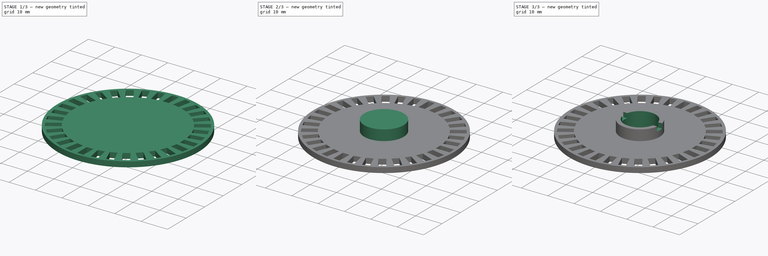
[diagram: build sequence overview — one tinted view per stage of 3, left to right]
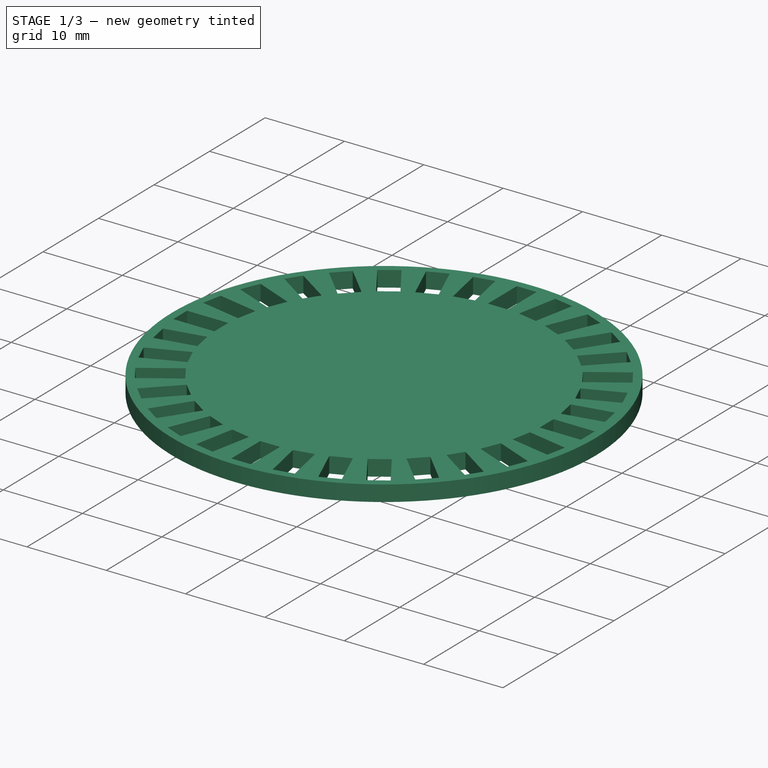
[diagram: stage 1 of 3 — iso view after this stage's code; geometry added in this stage tinted green]
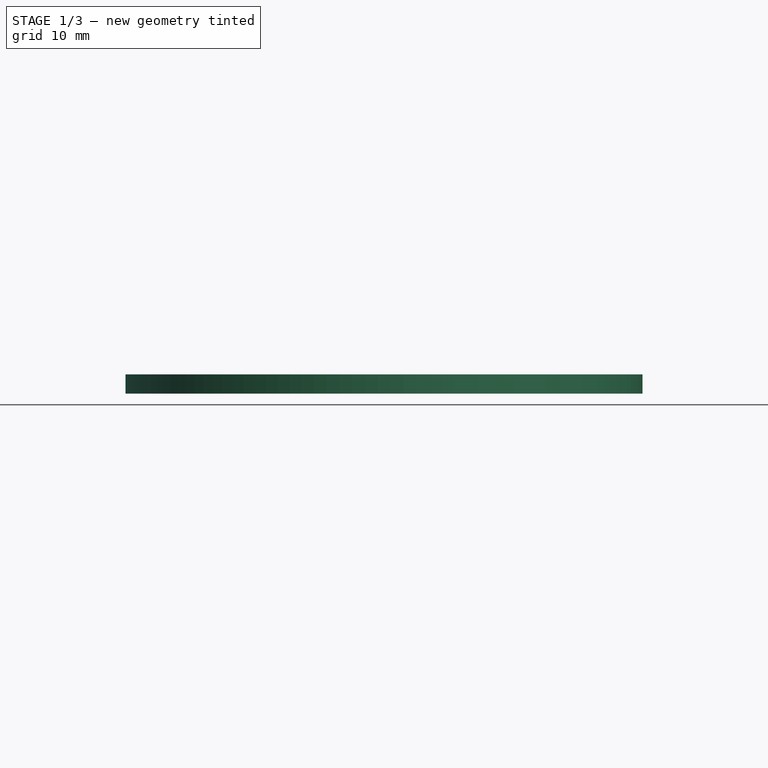
[diagram: stage 1 of 3 — front view after this stage's code; geometry added in this stage tinted green]
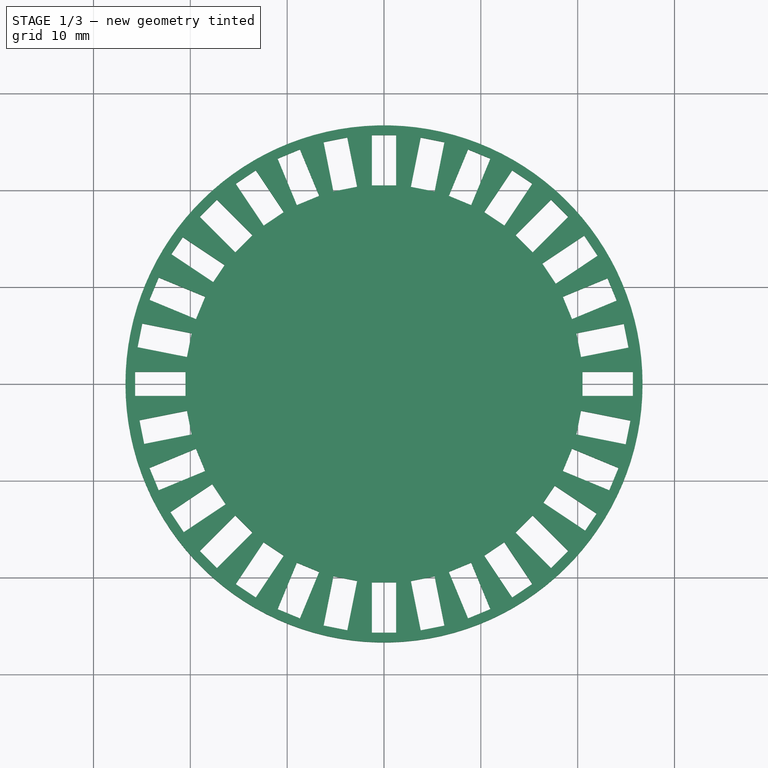
[diagram: stage 1 of 3 — top view after this stage's code; geometry added in this stage tinted green]
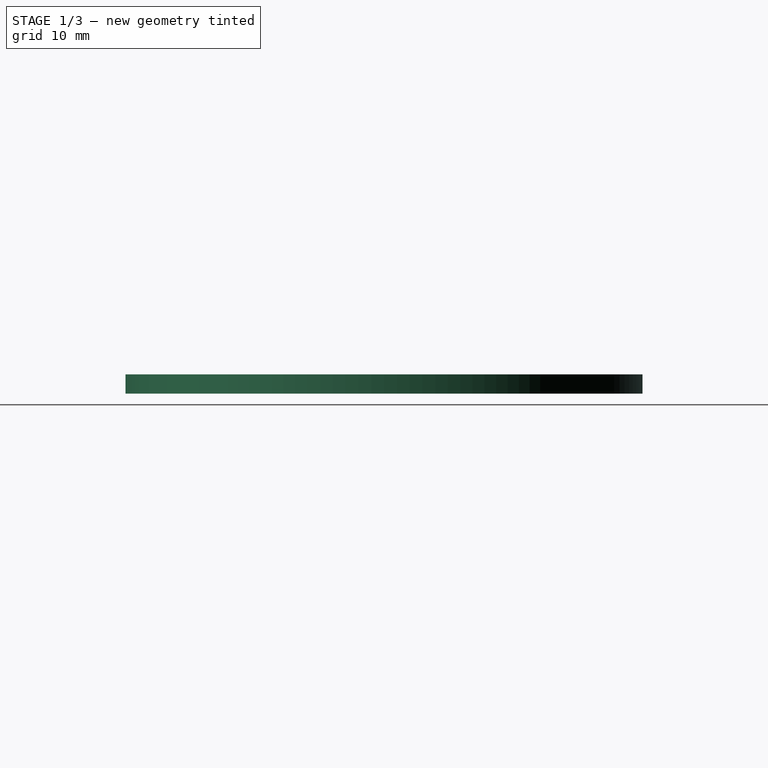
[diagram: stage 1 of 3 — right view after this stage's code; geometry added in this stage tinted green]
FCSTD DOCUMENT  (FreeCAD 0.16R)
Label: 31102020_encoder_disc
License: All rights reserved
LicenseURL: http://en.wikipedia.org/wiki/All_rights_reserved
objects: Sketcher::SketchObject×5, PartDesign::Pocket×3, PartDesign::Pad×2
note: 15 computed .brp shape members not serialized (recipe doc carries the construction recipe); baked Part::Feature solids carry a one-line shape summary decoded from their .brp

FEATURE [Sketcher::SketchObject] Sketch
  sketch-geometry (1):
    g0: Circle CenterX=0 CenterY=0 CenterZ=0 NormalX=0 NormalY=0 NormalZ=1 Radius=26.7
  constraints (2):
    c: Coincident(g0,g-1)
    c: Radius(g0) = 26.7
FEATURE [PartDesign::Pad] Pad
  Length = 2
  Length2 = 100
  Sketch = -> Sketch
  Type = 0
FEATURE [Sketcher::SketchObject] Sketch001
  ExternalGeometry = -> [Pad]
  Placement = pos=(0,0,2) rot=(0,0,1;0rad)
  Support = -> Pad [Face3]
  sketch-geometry (158):
    g0: LineSegment StartX=-25.7 StartY=1.25 StartZ=0 EndX=-20.5 EndY=1.25 EndZ=0
    g1: LineSegment StartX=-20.5 StartY=1.25 StartZ=0 EndX=-20.5 EndY=-1.25 EndZ=0
    g2: LineSegment StartX=-20.5 StartY=-1.25 StartZ=0 EndX=-25.7 EndY=-1.25 EndZ=0
    g3: LineSegment StartX=-25.7 StartY=-1.25 StartZ=0 EndX=-25.7 EndY=1.25 EndZ=0
    g4: LineSegment StartX=20.5 StartY=1.25 StartZ=0 EndX=25.7 EndY=1.25 EndZ=0
    g5: LineSegment StartX=25.7 StartY=1.25 StartZ=0 EndX=25.7 EndY=-1.25 EndZ=0
    g6: LineSegment StartX=25.7 StartY=-1.25 StartZ=0 EndX=20.5 EndY=-1.25 EndZ=0
    g7: LineSegment StartX=20.5 StartY=-1.25 StartZ=0 EndX=20.5 EndY=1.25 EndZ=0
    g8: LineSegment StartX=-1.25 StartY=25.7 StartZ=0 EndX=1.25 EndY=25.7 EndZ=0
    g9: LineSegment StartX=1.25 StartY=25.7 StartZ=0 EndX=1.25 EndY=20.5 EndZ=0
    g10: LineSegment StartX=1.25 StartY=20.5 StartZ=0 EndX=-1.25 EndY=20.5 EndZ=0
    g11: LineSegment StartX=-1.25 StartY=20.5 StartZ=0 EndX=-1.25 EndY=25.7 EndZ=0
    g12: LineSegment StartX=-1.25 StartY=-20.5 StartZ=0 EndX=1.25 EndY=-20.5 EndZ=0
    g13: LineSegment StartX=1.25 StartY=-20.5 StartZ=0 EndX=1.25 EndY=-25.7 EndZ=0
    g14: LineSegment StartX=1.25 StartY=-25.7 StartZ=0 EndX=-1.25 EndY=-25.7 EndZ=0
    g15: LineSegment StartX=-1.25 StartY=-25.7 StartZ=0 EndX=-1.25 EndY=-20.5 EndZ=0
    g16: LineSegment StartX=-19.0296 StartY=17.2618 StartZ=0 EndX=-17.2618 EndY=19.0296 EndZ=0
    g17: LineSegment StartX=-17.2618 StartY=19.0296 StartZ=0 EndX=-13.5848 EndY=15.3526 EndZ=0
    g18: LineSegment StartX=-13.5848 StartY=15.3526 StartZ=0 EndX=-15.3526 EndY=13.5848 EndZ=0
    g19: LineSegment StartX=-15.3526 StartY=13.5848 StartZ=0 EndX=-19.0296 EndY=17.2618 EndZ=0
    g20: LineSegment StartX=17.2618 StartY=19.0296 StartZ=0 EndX=19.0296 EndY=17.2618 EndZ=0
    g21: LineSegment StartX=19.0296 StartY=17.2618 StartZ=0 EndX=15.3526 EndY=13.5848 EndZ=0
    g22: LineSegment StartX=15.3526 StartY=13.5848 StartZ=0 EndX=13.5848 EndY=15.3526 EndZ=0
    g23: LineSegment StartX=13.5848 StartY=15.3526 StartZ=0 EndX=17.2618 EndY=19.0296 EndZ=0
    g24: LineSegment StartX=17.2618 StartY=-19.0296 StartZ=0 EndX=19.0296 EndY=-17.2618 EndZ=0
    g25: LineSegment StartX=19.0296 StartY=-17.2618 StartZ=0 EndX=15.3526 EndY=-13.5848 EndZ=0
    g26: LineSegment StartX=15.3526 StartY=-13.5848 StartZ=0 EndX=13.5848 EndY=-15.3526 EndZ=0
    g27: LineSegment StartX=13.5848 StartY=-15.3526 StartZ=0 EndX=17.2618 EndY=-19.0296 EndZ=0
    g28: LineSegment StartX=-17.2618 StartY=-19.0296 StartZ=0 EndX=-19.0296 EndY=-17.2618 EndZ=0
    g29: LineSegment StartX=-19.0296 StartY=-17.2618 StartZ=0 EndX=-15.3526 EndY=-13.5848 EndZ=0
    g30: LineSegment StartX=-15.3526 StartY=-13.5848 StartZ=0 EndX=-13.5848 EndY=-15.3526 EndZ=0
    g31: LineSegment StartX=-13.5848 StartY=-15.3526 StartZ=0 EndX=-17.2618 EndY=-19.0296 EndZ=0
    g32: LineSegment [constr] StartX=-8.64705 StartY=8.64705 StartZ=0 EndX=-8.42123 EndY=8.42123 EndZ=0
    g33: LineSegment [constr] StartX=-46.2247 StartY=-46.2247 StartZ=0 EndX=-23.4467 EndY=-23.4467 EndZ=0
    g34: LineSegment [constr] StartX=-45.4398 StartY=18.8218 StartZ=0 EndX=42.8093 EndY=-17.7322 EndZ=0
    g35: LineSegment [constr] StartX=-26.2867 StartY=-10.8883 StartZ=0 EndX=60.8199 EndY=25.1924 EndZ=0
    g36: LineSegment [constr] StartX=-11.8852 StartY=28.6933 StartZ=0 EndX=13.143 EndY=-31.7301 EndZ=0
    g37: LineSegment [constr] StartX=-12.2139 StartY=-29.4869 StartZ=0 EndX=8.84197 EndY=21.3464 EndZ=0
    g38: LineSegment StartX=8.68011 StartY=24.2221 StartZ=0 EndX=6.69016 EndY=19.4179 EndZ=0
    g39: LineSegment StartX=6.69016 StartY=19.4179 StartZ=0 EndX=8.99986 EndY=18.4612 EndZ=0
    g40: LineSegment StartX=8.99986 StartY=18.4612 StartZ=0 EndX=10.9898 EndY=23.2653 EndZ=0
    g41: LineSegment StartX=10.9898 StartY=23.2653 StartZ=0 EndX=8.68011 EndY=24.2221 EndZ=0
    g42: LineSegment StartX=18.4612 StartY=8.99986 StartZ=0 EndX=19.4179 EndY=6.69016 EndZ=0
    g43: LineSegment StartX=19.4179 StartY=6.69016 StartZ=0 EndX=24.0373 EndY=8.60358 EndZ=0
    g44: LineSegment StartX=24.0373 StartY=8.60358 StartZ=0 EndX=23.0806 EndY=10.9133 EndZ=0
    g45: LineSegment StartX=23.0806 StartY=10.9133 StartZ=0 EndX=18.4612 EndY=8.99986 EndZ=0
    g46: LineSegment StartX=-23.2653 StartY=10.9898 StartZ=0 EndX=-24.2221 EndY=8.68011 EndZ=0
    g47: LineSegment StartX=-24.2221 StartY=8.68011 StartZ=0 EndX=-19.4179 EndY=6.69016 EndZ=0
    g48: LineSegment StartX=-19.4179 StartY=6.69016 StartZ=0 EndX=-18.4612 EndY=8.99986 EndZ=0
    g49: LineSegment StartX=-18.4612 StartY=8.99986 StartZ=0 EndX=-23.2653 EndY=10.9898 EndZ=0
    g50: LineSegment StartX=-24.2221 StartY=-8.68011 StartZ=0 EndX=-23.2653 EndY=-10.9898 EndZ=0
    g51: LineSegment StartX=-23.2653 StartY=-10.9898 StartZ=0 EndX=-18.4612 EndY=-8.99986 EndZ=0
    g52: LineSegment StartX=-18.4612 StartY=-8.99986 StartZ=0 EndX=-19.4179 EndY=-6.69016 EndZ=0
    g53: LineSegment StartX=-19.4179 StartY=-6.69016 StartZ=0 EndX=-24.2221 EndY=-8.68011 EndZ=0
    g54: LineSegment StartX=-10.9898 StartY=-23.2653 StartZ=0 EndX=-8.68011 EndY=-24.2221 EndZ=0
    g55: LineSegment StartX=-8.68011 StartY=-24.2221 StartZ=0 EndX=-6.69016 EndY=-19.4179 EndZ=0
    g56: LineSegment StartX=-6.69016 StartY=-19.4179 StartZ=0 EndX=-8.99986 EndY=-18.4612 EndZ=0
    g57: LineSegment StartX=-8.99986 StartY=-18.4612 StartZ=0 EndX=-10.9898 EndY=-23.2653 EndZ=0
    g58: LineSegment StartX=6.69016 StartY=-19.4179 StartZ=0 EndX=8.68011 EndY=-24.2221 EndZ=0
    g59: LineSegment StartX=8.68011 StartY=-24.2221 StartZ=0 EndX=10.9898 EndY=-23.2653 EndZ=0
    g60: LineSegment StartX=10.9898 StartY=-23.2653 StartZ=0 EndX=8.99986 EndY=-18.4612 EndZ=0
    g61: LineSegment StartX=8.99986 StartY=-18.4612 StartZ=0 EndX=6.69016 EndY=-19.4179 EndZ=0
    g62: LineSegment StartX=19.4179 StartY=-6.69016 StartZ=0 EndX=18.4612 EndY=-8.99986 EndZ=0
    g63: LineSegment StartX=18.4612 StartY=-8.99986 StartZ=0 EndX=23.2653 EndY=-10.9898 EndZ=0
    g64: LineSegment StartX=23.2653 StartY=-10.9898 StartZ=0 EndX=24.2221 EndY=-8.68011 EndZ=0
    g65: LineSegment StartX=24.2221 StartY=-8.68011 StartZ=0 EndX=19.4179 EndY=-6.69016 EndZ=0
    g66: GeomPoint [constr] X=-7.84501 Y=-18.9395 Z=0
    g67: GeomPoint [constr] X=-18.9395 Y=-7.84501 Z=0
    g68: GeomPoint [constr] X=-18.9395 Y=7.84501 Z=0
    g69: GeomPoint [constr] X=18.9395 Y=-7.84501 Z=0
    g70: GeomPoint [constr] X=18.9395 Y=7.84501 Z=0
    g71: GeomPoint [constr] X=7.84501 Y=18.9395 Z=0
    g72: GeomPoint [constr] X=-7.84501 Y=18.9395 Z=0
    g73: LineSegment StartX=-10.9898 StartY=23.2653 StartZ=0 EndX=-8.68011 EndY=24.2221 EndZ=0
    g74: LineSegment StartX=-8.68011 StartY=24.2221 StartZ=0 EndX=-6.69016 EndY=19.4179 EndZ=0
    g75: LineSegment StartX=-6.69016 StartY=19.4179 StartZ=0 EndX=-8.99986 EndY=18.4612 EndZ=0
    g76: LineSegment StartX=-8.99986 StartY=18.4612 StartZ=0 EndX=-10.9898 EndY=23.2653 EndZ=0
    g77: GeomPoint [constr] X=7.84501 Y=-18.9395 Z=0
    g78: LineSegment [constr] StartX=-38.8403 StartY=-25.9523 StartZ=0 EndX=34.297 EndY=22.9166 EndZ=0
    g79: LineSegment [constr] StartX=-41.2037 StartY=-8.19592 StartZ=0 EndX=50.542 EndY=10.0534 EndZ=0
    g80: LineSegment [constr] StartX=-16.076 StartY=-24.0594 StartZ=0 EndX=16.2776 EndY=24.3612 EndZ=0
    g81: LineSegment [constr] StartX=-10.318 StartY=-51.8721 StartZ=0 EndX=11.9268 EndY=59.9603 EndZ=0
    g82: LineSegment [constr] StartX=-49.656 StartY=9.87719 StartZ=0 EndX=45.5538 EndY=-9.06121 EndZ=0
    g83: LineSegment [constr] StartX=-38.1317 StartY=25.4788 StartZ=0 EndX=38.2061 EndY=-25.5285 EndZ=0
    g84: LineSegment [constr] StartX=-18.7384 StartY=28.0439 StartZ=0 EndX=22.1765 EndY=-33.1894 EndZ=0
    g85: LineSegment [constr] StartX=-5.72925 StartY=28.8029 StartZ=0 EndX=6.53436 EndY=-32.8504 EndZ=0
    g86: LineSegment StartX=19.8622 StartY=5.22533 StartZ=0 EndX=20.35 EndY=2.77337 EndZ=0
    g87: LineSegment StartX=20.35 StartY=2.77337 StartZ=0 EndX=25.2539 EndY=3.74882 EndZ=0
    g88: LineSegment StartX=25.2539 StartY=3.74882 StartZ=0 EndX=24.7662 EndY=6.20078 EndZ=0
    g89: LineSegment StartX=24.7662 StartY=6.20078 StartZ=0 EndX=19.8622 EndY=5.22533 EndZ=0
    g90: GeomPoint [constr] X=20.1061 Y=3.99935 Z=0
    g91: LineSegment StartX=-25.2539 StartY=-3.74882 StartZ=0 EndX=-24.7662 EndY=-6.20078 EndZ=0
    g92: LineSegment StartX=-24.7662 StartY=-6.20078 StartZ=0 EndX=-19.8622 EndY=-5.22533 EndZ=0
    g93: LineSegment StartX=-19.8622 StartY=-5.22533 StartZ=0 EndX=-20.35 EndY=-2.77337 EndZ=0
    g94: LineSegment StartX=-20.35 StartY=-2.77337 StartZ=0 EndX=-25.2539 EndY=-3.74882 EndZ=0
    g95: LineSegment StartX=-24.9623 StartY=6.2398 StartZ=0 EndX=-25.45 EndY=3.78784 EndZ=0
    g96: LineSegment StartX=-25.45 StartY=3.78784 StartZ=0 EndX=-20.35 EndY=2.77337 EndZ=0
    g97: LineSegment StartX=-20.35 StartY=2.77337 StartZ=0 EndX=-19.8622 EndY=5.22533 EndZ=0
    g98: LineSegment StartX=-19.8622 StartY=5.22533 StartZ=0 EndX=-24.9623 EndY=6.2398 EndZ=0
    g99: LineSegment StartX=-20.7785 StartY=15.1615 StartZ=0 EndX=-21.959 EndY=13.3948 EndZ=0
    g100: LineSegment StartX=-21.959 StartY=13.3948 StartZ=0 EndX=-17.6354 EndY=10.5058 EndZ=0
    g101: LineSegment StartX=-17.6354 StartY=10.5058 StartZ=0 EndX=-16.4549 EndY=12.2726 EndZ=0
    g102: LineSegment StartX=-16.4549 StartY=12.2726 StartZ=0 EndX=-20.7785 EndY=15.1615 EndZ=0
    g103: LineSegment StartX=-15.3175 StartY=20.6743 StartZ=0 EndX=-13.2388 EndY=22.0632 EndZ=0
    g104: LineSegment StartX=-13.2388 StartY=22.0632 StartZ=0 EndX=-10.3499 EndY=17.7396 EndZ=0
    g105: LineSegment StartX=-10.3499 StartY=17.7396 StartZ=0 EndX=-12.4285 EndY=16.3507 EndZ=0
    g106: LineSegment StartX=-12.4285 StartY=16.3507 StartZ=0 EndX=-15.3175 EndY=20.6743 EndZ=0
    g107: LineSegment StartX=-6.24165 StartY=24.9716 StartZ=0 EndX=-3.78969 EndY=25.4593 EndZ=0
    g108: LineSegment StartX=-3.78969 StartY=25.4593 StartZ=0 EndX=-2.77522 EndY=20.3593 EndZ=0
    g109: LineSegment StartX=-2.77522 StartY=20.3593 StartZ=0 EndX=-5.22718 EndY=19.8715 EndZ=0
    g110: LineSegment StartX=-5.22718 StartY=19.8715 StartZ=0 EndX=-6.24165 EndY=24.9716 EndZ=0
    g111: LineSegment StartX=3.78784 StartY=25.45 StartZ=0 EndX=2.77337 EndY=20.35 EndZ=0
    g112: LineSegment StartX=2.77337 StartY=20.35 StartZ=0 EndX=5.22533 EndY=19.8622 EndZ=0
    g113: LineSegment StartX=5.22533 StartY=19.8622 StartZ=0 EndX=6.2398 EndY=24.9623 EndZ=0
    g114: LineSegment StartX=6.2398 StartY=24.9623 StartZ=0 EndX=3.78784 EndY=25.45 EndZ=0
    g115: LineSegment StartX=13.2388 StartY=22.0632 StartZ=0 EndX=10.3499 EndY=17.7396 EndZ=0
    g116: LineSegment StartX=10.3499 StartY=17.7396 StartZ=0 EndX=12.4285 EndY=16.3507 EndZ=0
    g117: LineSegment StartX=12.4285 StartY=16.3507 StartZ=0 EndX=15.3175 EndY=20.6743 EndZ=0
    g118: LineSegment StartX=15.3175 StartY=20.6743 StartZ=0 EndX=13.2388 EndY=22.0632 EndZ=0
    g119: LineSegment StartX=16.3507 StartY=12.4285 StartZ=0 EndX=17.7396 EndY=10.3499 EndZ=0
    g120: LineSegment StartX=17.7396 StartY=10.3499 StartZ=0 EndX=22.0632 EndY=13.2388 EndZ=0
    g121: LineSegment StartX=22.0632 StartY=13.2388 StartZ=0 EndX=20.6743 EndY=15.3175 EndZ=0
    g122: LineSegment StartX=20.6743 StartY=15.3175 StartZ=0 EndX=16.3507 EndY=12.4285 EndZ=0
    g123: LineSegment StartX=20.35 StartY=-2.77337 StartZ=0 EndX=19.8622 EndY=-5.22533 EndZ=0
    g124: LineSegment StartX=19.8622 StartY=-5.22533 StartZ=0 EndX=24.9623 EndY=-6.2398 EndZ=0
    g125: LineSegment StartX=24.9623 StartY=-6.2398 StartZ=0 EndX=25.45 EndY=-3.78784 EndZ=0
    g126: LineSegment StartX=25.45 StartY=-3.78784 StartZ=0 EndX=20.35 EndY=-2.77337 EndZ=0
    g127: LineSegment StartX=17.6354 StartY=-10.5058 StartZ=0 EndX=16.4549 EndY=-12.2726 EndZ=0
    g128: LineSegment StartX=16.4549 StartY=-12.2726 StartZ=0 EndX=20.7785 EndY=-15.1615 EndZ=0
    g129: LineSegment StartX=20.7785 StartY=-15.1615 StartZ=0 EndX=21.959 EndY=-13.3948 EndZ=0
    g130: LineSegment StartX=21.959 StartY=-13.3948 StartZ=0 EndX=17.6354 EndY=-10.5058 EndZ=0
    g131: LineSegment StartX=10.3499 StartY=-17.7396 StartZ=0 EndX=12.4285 EndY=-16.3507 EndZ=0
    g132: LineSegment StartX=12.4285 StartY=-16.3507 StartZ=0 EndX=15.3175 EndY=-20.6743 EndZ=0
    g133: LineSegment StartX=15.3175 StartY=-20.6743 StartZ=0 EndX=13.2388 EndY=-22.0632 EndZ=0
    g134: LineSegment StartX=13.2388 StartY=-22.0632 StartZ=0 EndX=10.3499 EndY=-17.7396 EndZ=0
    g135: LineSegment StartX=2.77522 StartY=-20.3593 StartZ=0 EndX=5.22718 EndY=-19.8715 EndZ=0
    g136: LineSegment StartX=5.22718 StartY=-19.8715 StartZ=0 EndX=6.24165 EndY=-24.9716 EndZ=0
    g137: LineSegment StartX=6.24165 StartY=-24.9716 StartZ=0 EndX=3.78969 EndY=-25.4593 EndZ=0
    g138: LineSegment StartX=3.78969 StartY=-25.4593 StartZ=0 EndX=2.77522 EndY=-20.3593 EndZ=0
    g139: LineSegment StartX=-2.77337 StartY=-20.35 StartZ=0 EndX=-3.78784 EndY=-25.45 EndZ=0
    g140: LineSegment StartX=-3.78784 StartY=-25.45 StartZ=0 EndX=-6.2398 EndY=-24.9623 EndZ=0
    g141: LineSegment StartX=-6.2398 StartY=-24.9623 StartZ=0 EndX=-5.22533 EndY=-19.8622 EndZ=0
    g142: LineSegment StartX=-5.22533 StartY=-19.8622 StartZ=0 EndX=-2.77337 EndY=-20.35 EndZ=0
    g143: LineSegment StartX=-15.3175 StartY=-20.6743 StartZ=0 EndX=-13.2388 EndY=-22.0632 EndZ=0
    g144: LineSegment StartX=-13.2388 StartY=-22.0632 StartZ=0 EndX=-10.3499 EndY=-17.7396 EndZ=0
    g145: LineSegment StartX=-10.3499 StartY=-17.7396 StartZ=0 EndX=-12.4285 EndY=-16.3507 EndZ=0
    g146: LineSegment StartX=-12.4285 StartY=-16.3507 StartZ=0 EndX=-15.3175 EndY=-20.6743 EndZ=0
    g147: LineSegment StartX=-22.0632 StartY=-13.2388 StartZ=0 EndX=-20.6743 EndY=-15.3175 EndZ=0
    g148: LineSegment StartX=-20.6743 StartY=-15.3175 StartZ=0 EndX=-16.3507 EndY=-12.4285 EndZ=0
    g149: LineSegment StartX=-16.3507 StartY=-12.4285 StartZ=0 EndX=-17.7396 EndY=-10.3499 EndZ=0
    g150: LineSegment StartX=-17.7396 StartY=-10.3499 StartZ=0 EndX=-22.0632 EndY=-13.2388 EndZ=0
    g151: GeomPoint [constr] X=17.0451 Y=11.3892 Z=0
    g152: GeomPoint [constr] X=5.36597 Y=12.9546 Z=0
    g153: GeomPoint [constr] X=20.1061 Y=-3.99935 Z=0
    g154: GeomPoint [constr] X=-17.0451 Y=11.3892 Z=0
    g155: GeomPoint [constr] X=11.3892 Y=-17.0451 Z=0
    g156: GeomPoint [constr] X=-3.99935 Y=-20.1061 Z=0
    g157: GeomPoint [constr] X=-11.3892 Y=-17.0451 Z=0
  constraints (392):
    c: Coincident(g0,g1)
    c: Coincident(g1,g2)
    c: Coincident(g2,g3)
    c: Coincident(g3,g0)
    c: Horizontal(g0)
    c: Horizontal(g2)
    c: Vertical(g1)
    c: Vertical(g3)
    c: Coincident(g4,g5)
    c: Coincident(g5,g6)
    c: Coincident(g6,g7)
    c: Coincident(g7,g4)
    c: Horizontal(g4)
    c: Horizontal(g6)
    c: Vertical(g5)
    c: Vertical(g7)
    c: Coincident(g8,g9)
    c: Coincident(g9,g10)
    c: Coincident(g10,g11)
    c: Coincident(g11,g8)
    c: Horizontal(g8)
    c: Horizontal(g10)
    c: Vertical(g11)
    c: Coincident(g12,g13)
    c: Coincident(g13,g14)
    c: Coincident(g14,g15)
    c: Coincident(g15,g12)
    c: Horizontal(g12)
    c: Horizontal(g14)
    c: Vertical(g13)
    c: Vertical(g15)
    c: Symmetric(g10,g12,g-1)
    c: Symmetric(g9,g12,g-1)
    c: Symmetric(g13,g8,g-1)
    c: Symmetric(g4,g0,g-2)
    c: Symmetric(g2,g5,g-2)
    c: Distance(g0) = 5.2
    c: DistanceX(g0,g-1) = 20.5
    c: DistanceY(g-1,g10) = 20.5
    c: DistanceY(g10,g8) = 5.2
    c: Symmetric(g0,g2,g-1)
    c: Symmetric(g8,g8,g-2)
    c: Coincident(g16,g17)
    c: Coincident(g17,g18)
    c: Coincident(g18,g19)
    c: Coincident(g19,g16)
    c: Coincident(g20,g21)
    c: Coincident(g21,g22)
    c: Coincident(g22,g23)
    c: Coincident(g23,g20)
    c: Coincident(g24,g25)
    c: Coincident(g25,g26)
    c: Coincident(g26,g27)
    c: Coincident(g27,g24)
    c: Coincident(g28,g29)
    c: Coincident(g29,g30)
    c: Coincident(g30,g31)
    c: Coincident(g31,g28)
    c: Parallel(g28,g30)
    c: Parallel(g16,g18)
    c: Parallel(g19,g17)
    c: Parallel(g31,g29)
    c: Parallel(g27,g25)
    c: Parallel(g24,g26)
    c: Parallel(g21,g23)
    c: Distance(g17) = 5.2
    c: Distance(g21) = 5.2
    c: Angle(g32,g-1) = 0.785398
    c: PointOnObject(g-1,g32)
    c: PointOnObject(g-1,g33)
    c: Symmetric(g20,g20,g33)
    c: Symmetric(g22,g21,g33)
    c: Symmetric(g16,g16,g32)
    c: Symmetric(g17,g18,g32)
    c: Symmetric(g29,g30,g33)
    c: Symmetric(g28,g28,g33)
    c: Symmetric(g25,g26,g32)
    c: Symmetric(g24,g24,g32)
    c: Distance(g-1,g30) = 20.5
    c: Distance(g-1,g17) = 20.5
    c: Symmetric(g22,g29,g32)
    c: Symmetric(g30,g21,g32)
    c: Symmetric(g17,g25,g33)
    c: Symmetric(g24,g16,g33)
    c: Symmetric(g28,g20,g32)
    c: PointOnObject(g-1,g34)
    c: Angle(g34,g-1) = 0.392699
    c: PointOnObject(g-1,g35)
    c: Angle(g-1,g35) = 0.392699
    c: PointOnObject(g-1,g36)
    c: Angle(g-2,g36) = 0.392699
    c: PointOnObject(g-1,g37)
    c: Angle(g37,g-2) = 0.392699
    c: Coincident(g38,g39)
    c: Coincident(g39,g40)
    c: Coincident(g40,g41)
    c: Coincident(g41,g38)
    c: Coincident(g42,g43)
    c: Coincident(g43,g44)
    c: Coincident(g44,g45)
    c: Coincident(g45,g42)
    c: Coincident(g46,g47)
    c: Coincident(g47,g48)
    c: Coincident(g48,g49)
    c: Coincident(g49,g46)
    c: Coincident(g50,g51)
    c: Coincident(g51,g52)
    c: Coincident(g52,g53)
    c: Coincident(g53,g50)
    c: Coincident(g54,g55)
    c: Coincident(g55,g56)
    c: Coincident(g56,g57)
    c: Coincident(g57,g54)
    c: Coincident(g58,g59)
    c: Coincident(g59,g60)
    c: Coincident(g60,g61)
    c: Coincident(g61,g58)
    c: Coincident(g62,g63)
    c: Coincident(g63,g64)
    c: Coincident(g64,g65)
    c: Coincident(g65,g62)
    c: PointOnObject(g66,g37)
    c: PointOnObject(g67,g35)
    c: PointOnObject(g68,g34)
    c: PointOnObject(g69,g34)
    c: PointOnObject(g70,g35)
    c: PointOnObject(g71,g37)
    c: PointOnObject(g72,g36)
    c: Coincident(g73,g74)
    c: Coincident(g74,g75)
    c: Coincident(g75,g76)
    c: Coincident(g76,g73)
    c: PointOnObject(g72,g75)
    c: PointOnObject(g71,g39)
    c: PointOnObject(g70,g42)
    c: PointOnObject(g69,g62)
    c: PointOnObject(g77,g36)
    c: PointOnObject(g77,g61)
    c: PointOnObject(g66,g56)
    c: PointOnObject(g67,g52)
    c: PointOnObject(g68,g48)
    c: Distance(g-1,g69) = 20.5
    c: Distance(g-1,g77) = 20.5
    c: Distance(g-1,g66) = 20.5
    c: Distance(g-1,g67) = 20.5
    c: Symmetric(g62,g48,g37)
    c: Symmetric(g62,g47,g37)
    c: Symmetric(g60,g74,g35)
    c: Symmetric(g75,g58,g35)
    c: Symmetric(g55,g39,g34)
    c: Symmetric(g38,g56,g34)
    c: Symmetric(g51,g42,g36)
    c: Symmetric(g42,g52,g36)
    c: Parallel(g56,g54)
    c: Parallel(g50,g52)
    c: Parallel(g46,g48)
    c: Parallel(g73,g75)
    c: Parallel(g41,g39)
    c: Parallel(g44,g42)
    c: Parallel(g64,g62)
    c: Parallel(g59,g61)
    c: Symmetric(g50,g50,g35)
    c: Symmetric(g51,g52,g35)
    c: Distance(g51) = 5.2
    c: Symmetric(g46,g46,g34)
    c: Symmetric(g47,g48,g34)
    c: Distance(g49) = 5.2
    c: Equal(g75,g73)
    c: Symmetric(g73,g73,g36)
    c: Symmetric(g75,g74,g36)
    c: Distance(g74) = 5.2
    c: Symmetric(g38,g40,g37)
    c: Symmetric(g38,g39,g37)
    c: Distance(g38) = 5.2
    c: Equal(g41,g39)
    c: Symmetric(g42,g42,g35)
    c: Symmetric(g44,g43,g35)
    c: Distance(g43) = 5
    c: Equal(g44,g42)
    c: Symmetric(g64,g63,g34)
    c: Equal(g64,g62)
    c: Distance(g65) = 5.2
    c: Symmetric(g59,g58,g36)
    c: Equal(g59,g61)
    c: Distance(g60) = 5.2
    c: Symmetric(g54,g54,g37)
    c: Equal(g54,g56)
    c: Distance(g55) = 5.2
    c: Equal(g1,g18)
    c: Equal(g18,g52)
    c: Equal(g52,g48)
    c: Equal(g48,g75)
    c: Equal(g75,g10)
    c: Equal(g10,g39)
    c: Equal(g39,g22)
    c: Equal(g22,g42)
    c: Equal(g42,g7)
    c: Equal(g7,g62)
    c: Equal(g62,g26)
    c: Equal(g26,g61)
    c: Equal(g61,g12)
    c: Equal(g12,g56)
    c: Equal(g56,g30)
    c: PointOnObject(g-1,g78)
    c: Angle(g78) = 0.589049
    c: PointOnObject(g-1,g79)
    c: Angle(g79) = 0.19635
    c: PointOnObject(g-1,g80)
    c: Angle(g80) = 0.981748
    c: PointOnObject(g-1,g81)
    c: Angle(g81) = 1.37445
    c: PointOnObject(g-1,g82)
    c: Angle(g82) = -0.19635
    c: PointOnObject(g-1,g83)
    c: Angle(g83) = -0.589049
    c: PointOnObject(g-1,g84)
    c: Angle(g84) = -0.981748
    c: PointOnObject(g-1,g85)
    c: Angle(g85) = -1.37445
    c: Coincident(g86,g87)
    c: Coincident(g87,g88)
    c: Coincident(g88,g89)
    c: Coincident(g89,g86)
    c: DistanceY(g5,g5) = 2.5
    c: Equal(g88,g5)
    c: Equal(g43,g89)
    c: Equal(g87,g89)
    c: Symmetric(g88,g87,g79)
    c: Symmetric(g86,g86,g79)
    c: Equal(g86,g88)
    c: PointOnObject(g90,g79)
    c: PointOnObject(g90,g86)
    c: Distance(g-1,g90) = 20.5
    c: Coincident(g91,g92)
    c: Coincident(g92,g93)
    c: Coincident(g93,g94)
    c: Coincident(g94,g91)
    c: Coincident(g95,g96)
    c: Coincident(g96,g97)
    c: Coincident(g97,g98)
    c: Coincident(g98,g95)
    c: Coincident(g99,g100)
    c: Coincident(g100,g101)
    c: Coincident(g101,g102)
    c: Coincident(g102,g99)
    c: Coincident(g103,g104)
    c: Coincident(g104,g105)
    c: Coincident(g105,g106)
    c: Coincident(g106,g103)
    c: Coincident(g107,g108)
    c: Coincident(g108,g109)
    c: Coincident(g109,g110)
    c: Coincident(g110,g107)
    c: Coincident(g111,g112)
    c: Coincident(g112,g113)
    c: Coincident(g113,g114)
    c: Coincident(g114,g111)
    c: Coincident(g115,g116)
    c: Coincident(g116,g117)
    c: Coincident(g117,g118)
    c: Coincident(g118,g115)
    c: Coincident(g119,g120)
    c: Coincident(g120,g121)
    c: Coincident(g121,g122)
    c: Coincident(g122,g119)
    c: Coincident(g123,g124)
    c: Coincident(g124,g125)
    c: Coincident(g125,g126)
    c: Coincident(g126,g123)
    c: Coincident(g127,g128)
    c: Coincident(g128,g129)
    c: Coincident(g129,g130)
    c: Coincident(g130,g127)
    c: Coincident(g131,g132)
    c: Coincident(g132,g133)
    c: Coincident(g133,g134)
    c: Coincident(g134,g131)
    c: Coincident(g135,g136)
    c: Coincident(g136,g137)
    c: Coincident(g137,g138)
    c: Coincident(g138,g135)
    c: Coincident(g139,g140)
    c: Coincident(g140,g141)
    c: Coincident(g141,g142)
    c: Coincident(g142,g139)
    c: Coincident(g143,g144)
    c: Coincident(g144,g145)
    c: Coincident(g145,g146)
    c: Coincident(g146,g143)
    c: Coincident(g147,g148)
    c: Coincident(g148,g149)
    c: Coincident(g149,g150)
    c: Coincident(g150,g147)
    c: Symmetric(g86,g93,g85)
    c: Symmetric(g92,g86,g85)
    c: Symmetric(g91,g88,g85)
    c: Symmetric(g91,g87,g85)
    c: Equal(g122,g120)
    c: Equal(g121,g119)
    c: PointOnObject(g151,g78)
    c: PointOnObject(g152,g37)
    c: PointOnObject(g151,g119)
    c: Symmetric(g119,g119,g78)
    c: Symmetric(g121,g120,g78)
    c: Distance(g-1,g151) = 20.5
    c: Equal(g122,g21)
    c: Equal(g42,g119)
    c: Symmetric(g119,g149,g84)
    c: Symmetric(g119,g148,g84)
    c: Symmetric(g121,g147,g84)
    c: Symmetric(g147,g120,g84)
    c: Equal(g50,g52)
    c: Equal(g126,g6)
    c: Equal(g124,g126)
    c: Equal(g123,g125)
    c: Equal(g123,g7)
    c: Symmetric(g123,g123,g82)
    c: Symmetric(g124,g125,g82)
    c: PointOnObject(g153,g82)
    c: PointOnObject(g153,g123)
    c: Distance(g-1,g153) = 20.5
    c: Symmetric(g125,g95,g81)
    c: Symmetric(g124,g95,g81)
    c: Symmetric(g96,g123,g81)
    c: Symmetric(g97,g123,g81)
    c: Equal(g100,g102)
    c: Equal(g101,g99)
    c: Symmetric(g99,g99,g83)
    c: Symmetric(g100,g101,g83)
    c: PointOnObject(g154,g83)
    c: PointOnObject(g154,g101)
    c: Distance(g-1,g154) = 20.5
    c: Symmetric(g100,g127,g80)
    c: Symmetric(g127,g101,g80)
    c: Symmetric(g99,g129,g80)
    c: Symmetric(g99,g128,g80)
    c: Equal(g100,g49)
    c: Equal(g46,g48)
    c: Symmetric(g131,g104,g78)
    c: Symmetric(g131,g105,g78)
    c: Symmetric(g103,g133,g78)
    c: Symmetric(g132,g103,g78)
    c: PointOnObject(g155,g84)
    c: PointOnObject(g155,g131)
    c: Distance(g-1,g155) = 20.5
    c: Equal(g132,g134)
    c: Symmetric(g131,g131,g84)
    c: Symmetric(g133,g132,g84)
    c: Equal(g133,g131)
    c: Equal(g132,g27)
    c: Equal(g133,g24)
    c: Symmetric(g135,g109,g79)
    c: Symmetric(g108,g135,g79)
    c: Symmetric(g137,g107,g79)
    c: Symmetric(g107,g136,g79)
    c: Symmetric(g137,g136,g85)
    c: Symmetric(g135,g135,g85)
    c: Equal(g138,g136)
    c: Equal(g135,g137)
    c: Equal(g138,g13)
    c: Equal(g137,g14)
    c: Symmetric(g141,g111,g82)
    c: Symmetric(g112,g139,g82)
    c: Symmetric(g111,g140,g82)
    c: Symmetric(g113,g139,g82)
    c: Symmetric(g141,g139,g81)
    c: Symmetric(g140,g139,g81)
    c: Equal(g141,g139)
    c: Equal(g139,g15)
    c: Equal(g140,g14)
    c: Equal(g14,g142)
    c: PointOnObject(g156,g81)
    c: PointOnObject(g156,g142)
    c: Distance(g-1,g156) = 20.5
    c: PointOnObject(g157,g80)
    c: PointOnObject(g157,g145)
    c: Symmetric(g144,g145,g80)
    c: Symmetric(g143,g143,g80)
    c: Equal(g143,g145)
    c: Equal(g146,g144)
    c: Equal(g146,g57)
    c: Equal(g143,g54)
    c: Distance(g-1,g157) = 20.5
    c: Symmetric(g145,g115,g83)
    c: Symmetric(g116,g144,g83)
    c: Symmetric(g115,g143,g83)
    c: Symmetric(g143,g117,g83)
    c: Equal(g26,g24)
    c: Equal(g123,g125)
    c: Equal(g86,g88)
    c: Equal(g119,g121)
    c: Equal(g116,g118)
FEATURE [PartDesign::Pocket] Pocket
  Length = 5
  Sketch = -> Sketch001
  Type = 1
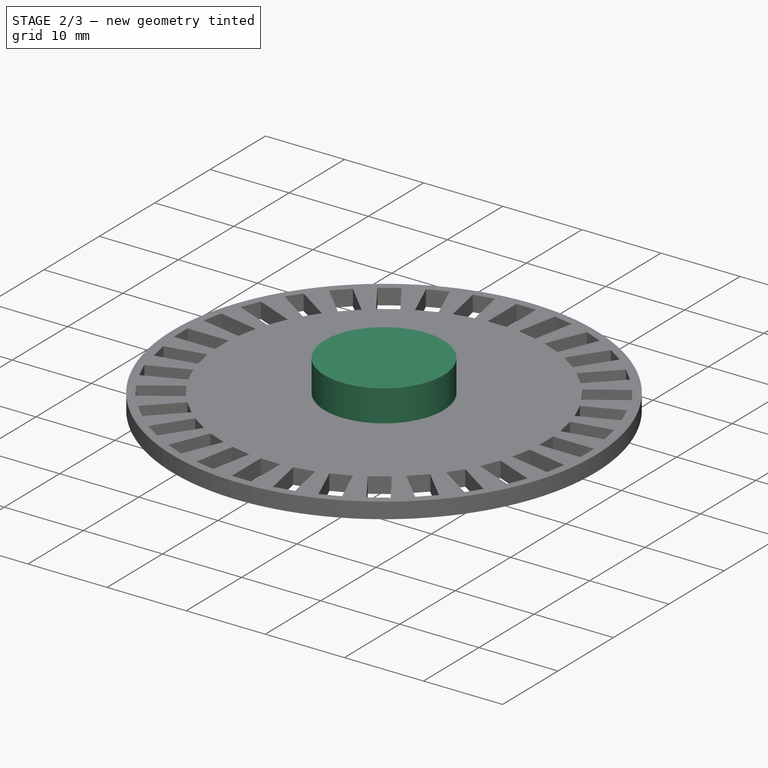
[diagram: stage 2 of 3 — iso view after this stage's code; geometry added in this stage tinted green]
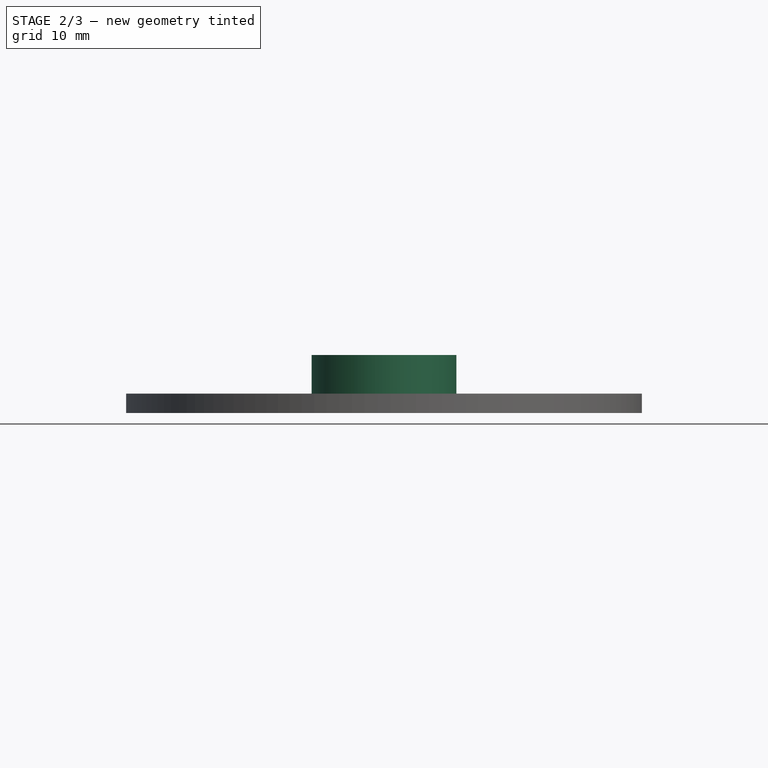
[diagram: stage 2 of 3 — front view after this stage's code; geometry added in this stage tinted green]
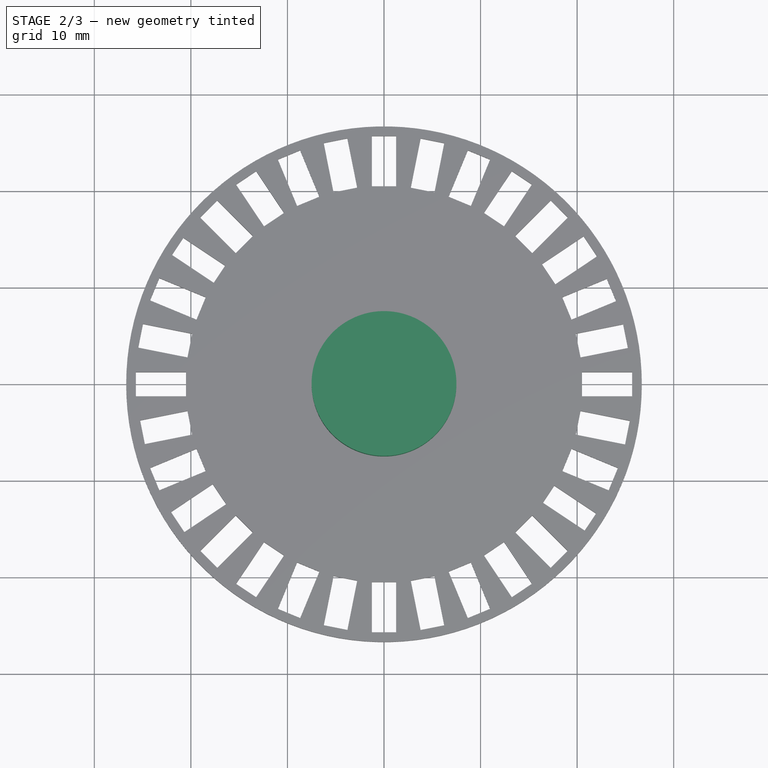
[diagram: stage 2 of 3 — top view after this stage's code; geometry added in this stage tinted green]
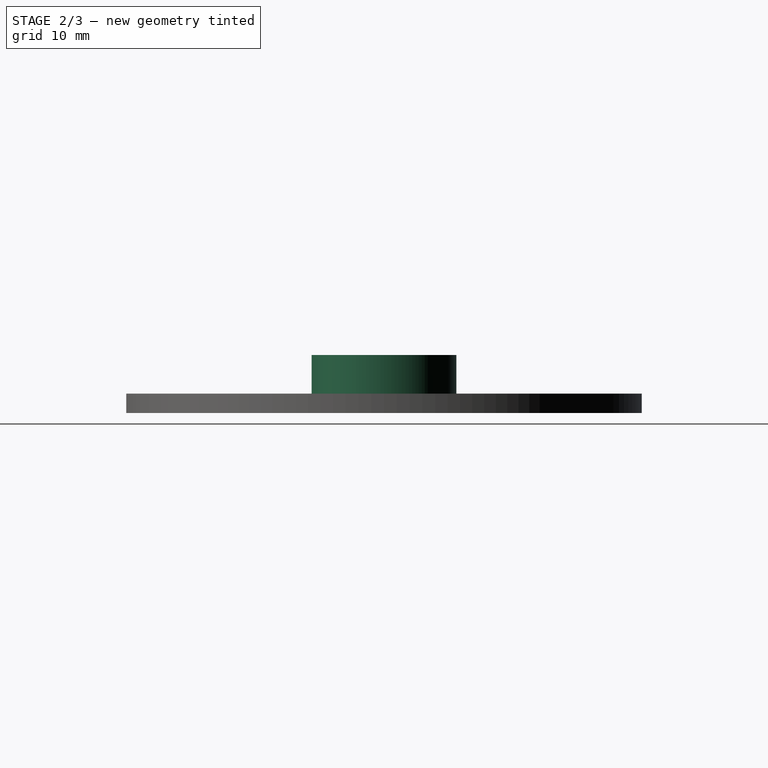
[diagram: stage 2 of 3 — right view after this stage's code; geometry added in this stage tinted green]
FEATURE [Sketcher::SketchObject] Sketch002
  Placement = pos=(0,0,2) rot=(0,0,1;0rad)
  Support = -> Pocket [Face3]
  sketch-geometry (1):
    g0: Circle CenterX=0 CenterY=0 CenterZ=0 NormalX=0 NormalY=0 NormalZ=1 Radius=7.5
  constraints (2):
    c: Coincident(g0,g-1)
    c: Radius(g0) = 7.5
FEATURE [PartDesign::Pad] Pad001
  Length = 4
  Length2 = 100
  Sketch = -> Sketch002
  Type = 0
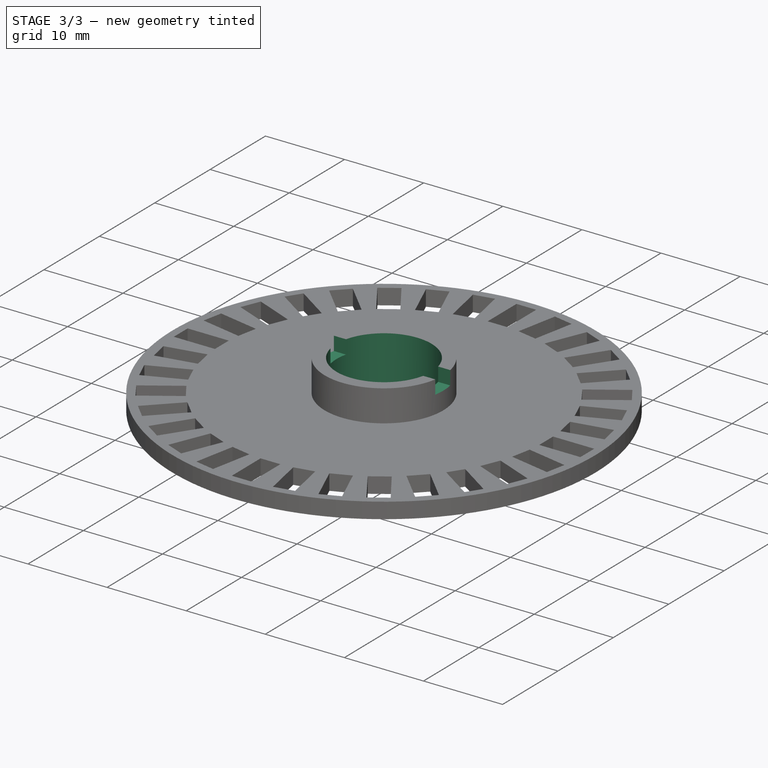
[diagram: stage 3 of 3 — iso view after this stage's code; geometry added in this stage tinted green]
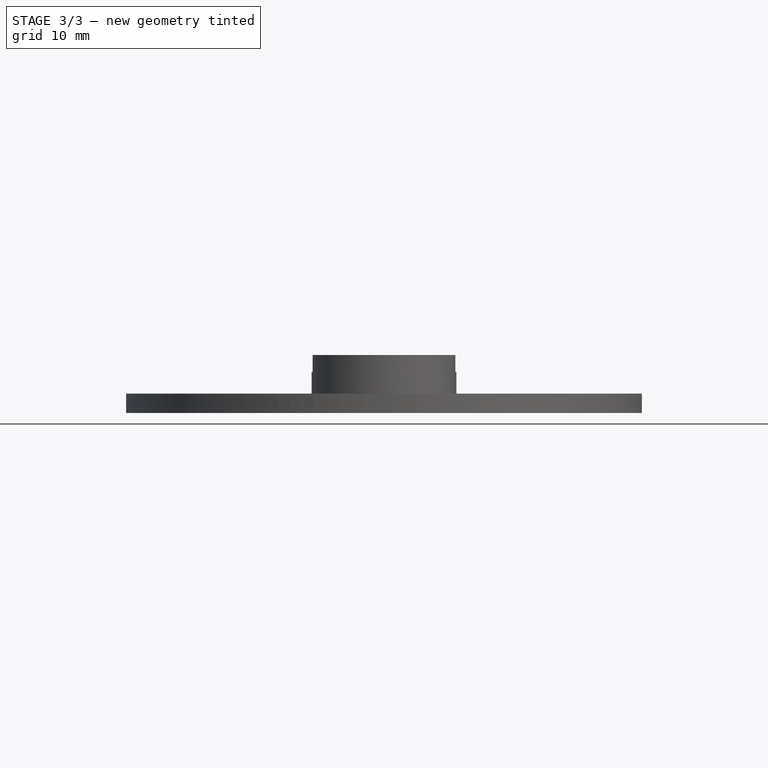
[diagram: stage 3 of 3 — front view after this stage's code; geometry added in this stage tinted green]
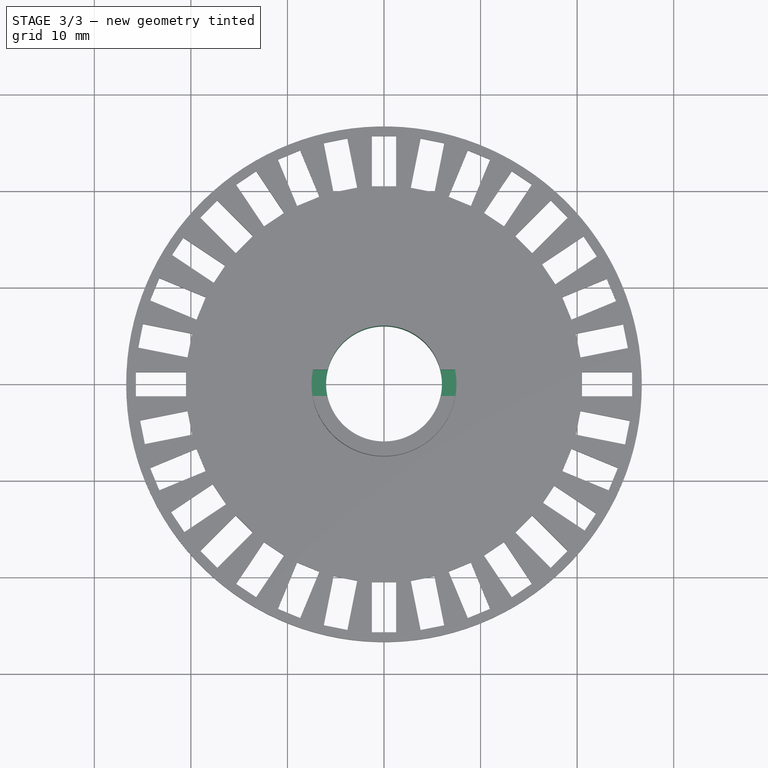
[diagram: stage 3 of 3 — top view after this stage's code; geometry added in this stage tinted green]
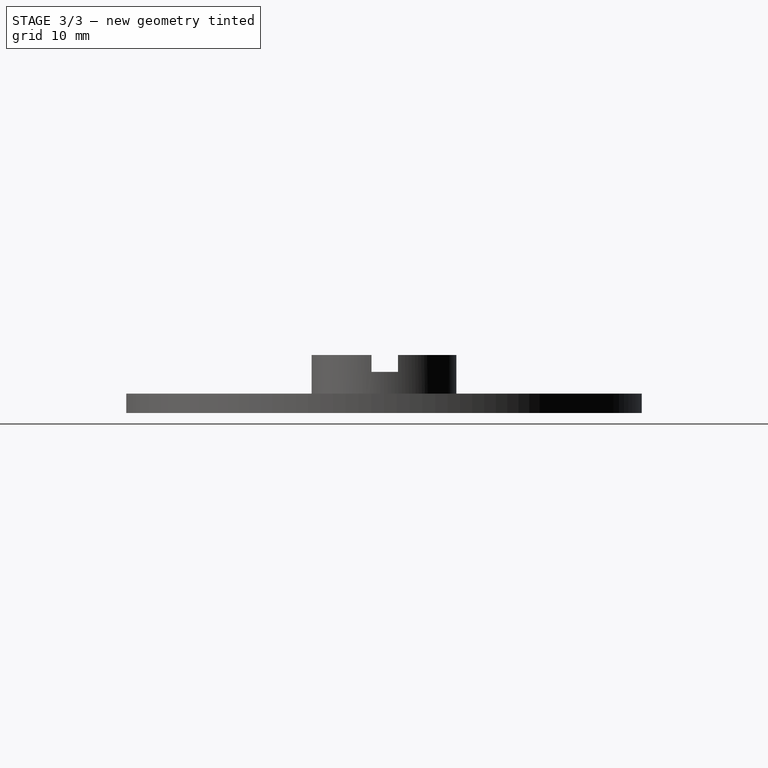
[diagram: stage 3 of 3 — right view after this stage's code; geometry added in this stage tinted green]
FEATURE [Sketcher::SketchObject] Sketch003
  Placement = pos=(0,0,6) rot=(0,0,1;0rad)
  Support = -> Pad001 [Face133]
  sketch-geometry (1):
    g0: Circle CenterX=0 CenterY=0 CenterZ=0 NormalX=0 NormalY=0 NormalZ=1 Radius=6
  constraints (2):
    c: Coincident(g0,g-1)
    c: Radius(g0) = 6
FEATURE [PartDesign::Pocket] Pocket001
  Length = 5
  Sketch = -> Sketch003
  Type = 1
FEATURE [Sketcher::SketchObject] Sketch004
  Placement = pos=(0,0,6) rot=(0,0,1;0rad)
  Support = -> Pocket001 [Face134]
  sketch-geometry (4):
    g0: LineSegment StartX=-8.92447 StartY=1.45344 StartZ=0 EndX=9.30108 EndY=1.45344 EndZ=0
    g1: LineSegment StartX=9.30108 StartY=1.45344 StartZ=0 EndX=9.30108 EndY=-1.29656 EndZ=0
    g2: LineSegment StartX=9.30108 StartY=-1.29656 StartZ=0 EndX=-8.92447 EndY=-1.29656 EndZ=0
    g3: LineSegment StartX=-8.92447 StartY=-1.29656 StartZ=0 EndX=-8.92447 EndY=1.45344 EndZ=0
  constraints (9):
    c: Coincident(g0,g1)
    c: Coincident(g1,g2)
    c: Coincident(g2,g3)
    c: Coincident(g3,g0)
    c: Horizontal(g0)
    c: Horizontal(g2)
    c: Vertical(g1)
    c: Vertical(g3)
    c: DistanceY(g1,g1) = 2.75
FEATURE [PartDesign::Pocket] Pocket002
  Length = 1.75
  Sketch = -> Sketch004
  Type = 0
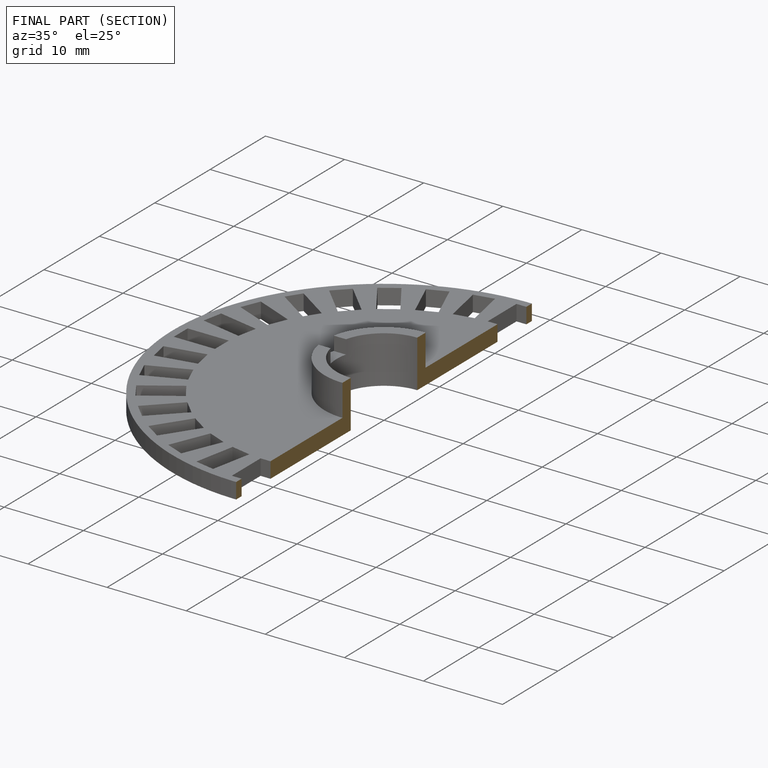
[diagram: finished part — half-section view (interior)]
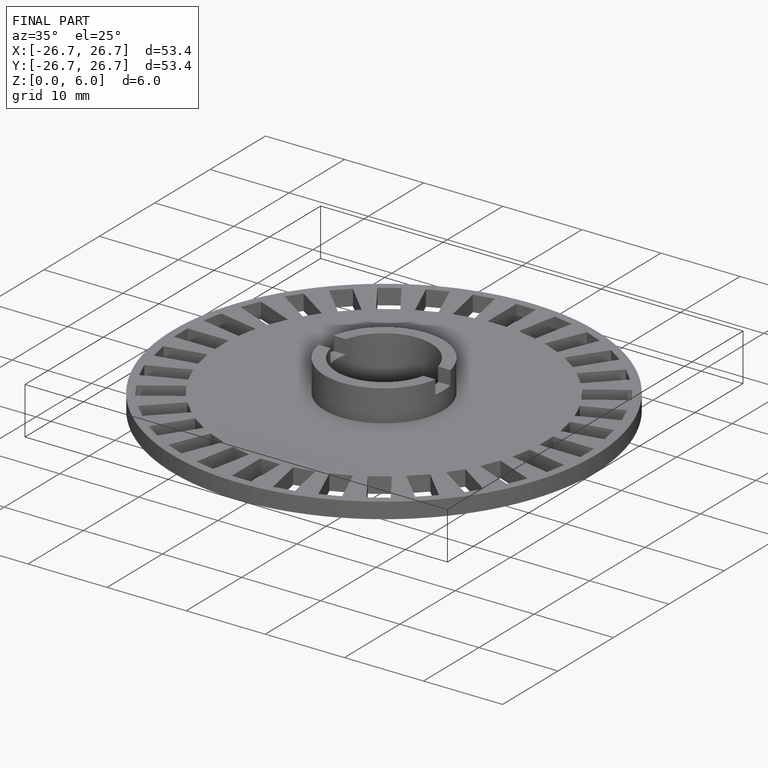
[diagram: finished part — iso view with bounding-box wireframe]
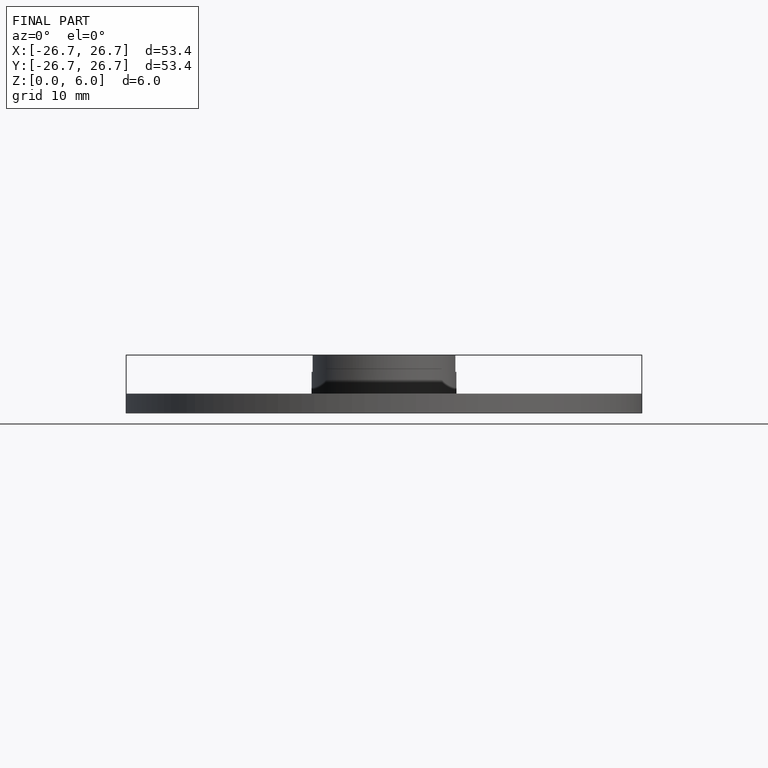
[diagram: finished part — front view with bounding-box wireframe]
